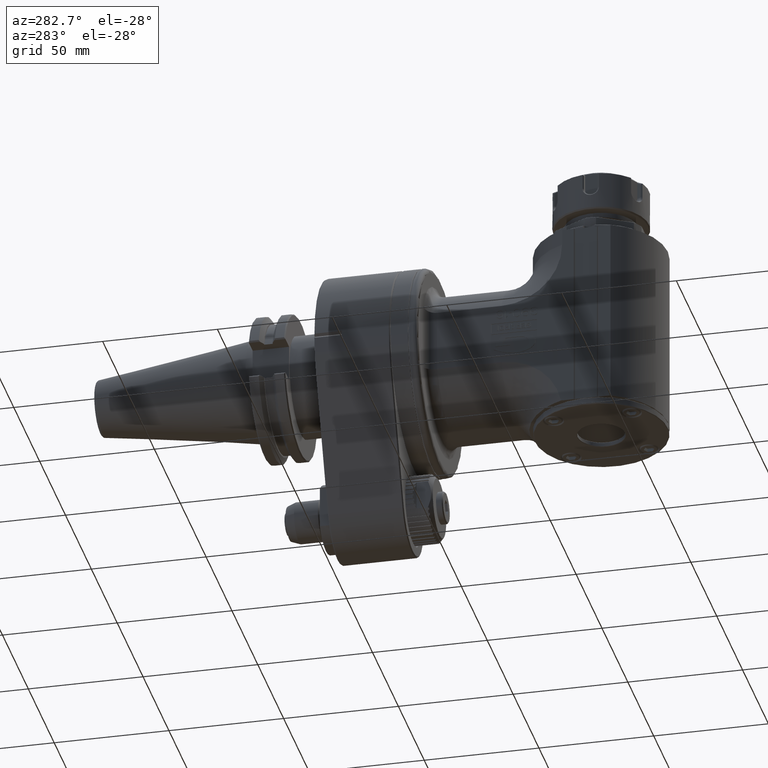
[diagram: clean part render]
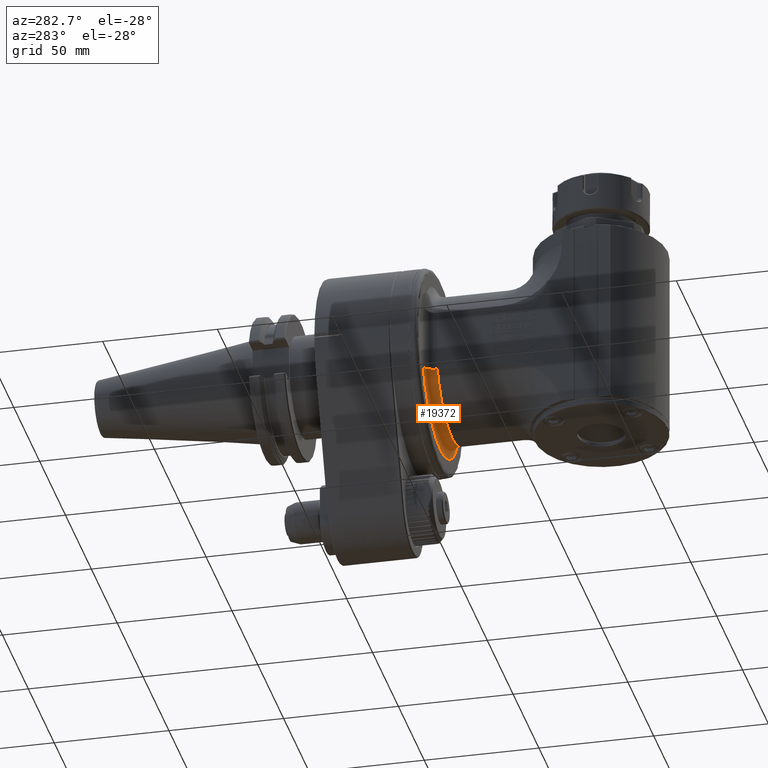
[diagram: same view with one face highlighted and labeled with its STEP entity id]
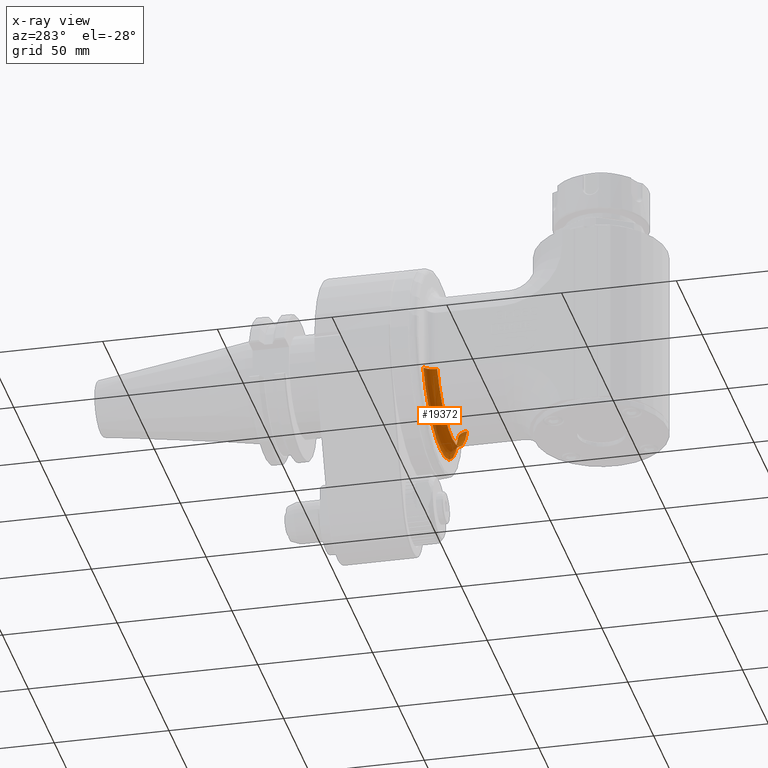
[diagram: x-ray of the same camera — body ghosted, the highlighted face saturated]
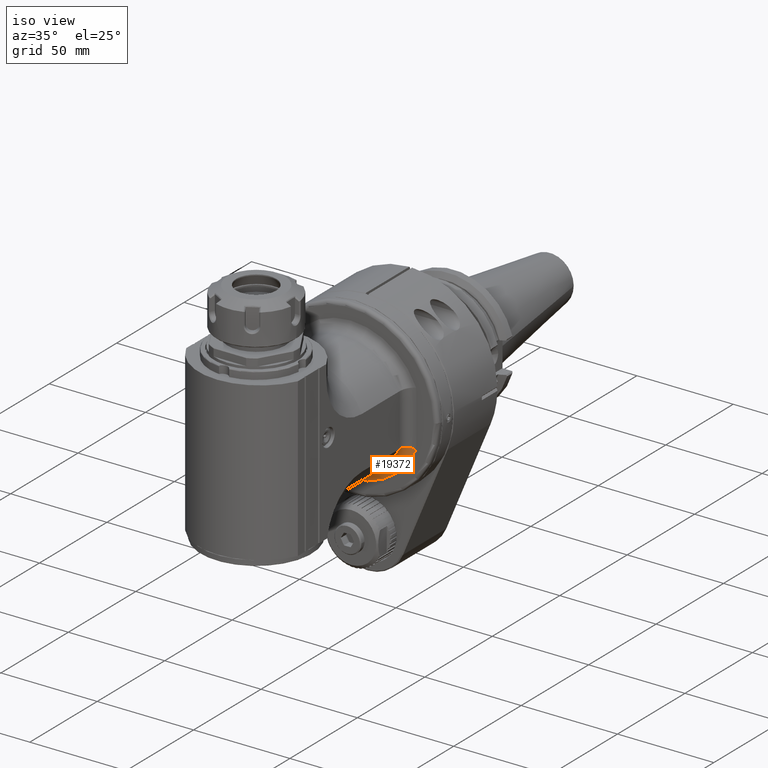
[diagram: same view with one face highlighted and labeled with its STEP entity id]
A machine part, auxiliary view. The second image highlights one B-rep face of the part: STEP entity #19372.
The next image is the same camera in x-ray: the body ghosted, the highlighted face saturated — about 2% of this face is hidden behind the body in this view.
A second angle (iso view) of the same face is appended — the face is thin or edge-on in the first view.
In plain terms, the highlighted toroidal blend (fillet) surface has major radius 37 mm and minor (blend) radius 5 mm.
Its self-contained STEP definition (entity closure, byte-faithful):
#125=TOROIDAL_SURFACE('',#20939,37.,5.);
#184=B_SPLINE_CURVE_WITH_KNOTS('',3,(#31478,#31479,#31480,#31481,#31482,
#31483,#31484,#31485,#31486,#31487,#31488,#31489,#31490,#31491,#31492,#31493,
#31494,#31495,#31496,#31497,#31498,#31499,#31500,#31501,#31502,#31503,#31504,
#31505,#31506,#31507,#31508,#31509,#31510,#31511,#31512,#31513,#31514,#31515,
#31516,#31517,#31518,#31519,#31520,#31521,#31522,#31523,#31524,#31525,#31526,
#31527,#31528,#31529,#31530,#31531,#31532,#31533,#31534,#31535,#31536,#31537,
#31538,#31539,#31540,#31541,#31542,#31543,#31544,#31545,#31546,#31547,#31548,
#31549,#31550,#31551,#31552,#31553,#31554,#31555,#31556,#31557,#31558,#31559,
#31560,#31561,#31562,#31563,#31564,#31565,#31566,#31567,#31568,#31569,#31570,
#31571),.UNSPECIFIED.,.F.,.F.,(4,3,3,3,3,3,3,3,3,3,3,3,3,3,3,3,3,3,3,3,
3,3,3,3,3,3,3,3,3,3,3,4),(0.,0.03225806451613,0.06451612903226,0.09677419354839,
0.1290322580645,0.1612903225806,0.1935483870968,0.2258064516129,0.258064516129,
0.2903225806452,0.3225806451613,0.3548387096774,0.3870967741935,0.4193548387097,
0.4516129032258,0.4838709677419,0.5161290322581,0.5483870967742,0.5806451612903,
0.6129032258065,0.6451612903226,0.6774193548387,0.7096774193548,0.741935483871,
0.7741935483871,0.8064516129032,0.8387096774194,0.8709677419355,0.9032258064516,
0.9354838709677,0.9677419354839,1.),.UNSPECIFIED.);
#185=B_SPLINE_CURVE_WITH_KNOTS('',3,(#31572,#31573,#31574,#31575,#31576,
#31577,#31578,#31579,#31580,#31581,#31582,#31583,#31584,#31585,#31586,#31587,
#31588,#31589,#31590,#31591,#31592,#31593,#31594,#31595,#31596,#31597,#31598,
#31599,#31600,#31601,#31602,#31603,#31604,#31605),.UNSPECIFIED.,.F.,.F.,
(4,1,1,1,1,1,1,1,1,1,1,1,1,1,1,1,1,1,1,1,1,1,1,1,1,1,1,1,1,1,1,4),(0.,0.03225806451613,
0.06451612903226,0.09677419354839,0.1290322580645,0.1612903225806,0.1935483870968,
0.2258064516129,0.258064516129,0.2903225806452,0.3225806451613,0.3548387096774,
0.3870967741935,0.4193548387097,0.4516129032258,0.4838709677419,0.5161290322581,
0.5483870967742,0.5806451612903,0.6129032258065,0.6451612903226,0.6774193548387,
0.7096774193548,0.741935483871,0.7741935483871,0.8064516129032,0.8387096774194,
0.8709677419355,0.9032258064516,0.9354838709677,0.9677419354839,1.),
 .UNSPECIFIED.);
#1114=CIRCLE('',#20938,32.);
#1115=CIRCLE('',#20940,37.);
#1939=FACE_OUTER_BOUND('',#3067,.T.);
#3067=EDGE_LOOP('',(#15036,#15037,#15038,#15039));
#8408=VERTEX_POINT('',#30784);
#8417=VERTEX_POINT('',#30806);
#8599=VERTEX_POINT('',#31475);
#8600=VERTEX_POINT('',#31476);
#10933=EDGE_CURVE('',#8417,#8408,#1114,.T.);
#10934=EDGE_CURVE('',#8599,#8600,#1115,.T.);
#10935=EDGE_CURVE('',#8600,#8408,#184,.T.);
#10936=EDGE_CURVE('',#8417,#8599,#185,.T.);
#15036=ORIENTED_EDGE('',*,*,#10934,.T.);
#15037=ORIENTED_EDGE('',*,*,#10935,.T.);
#15038=ORIENTED_EDGE('',*,*,#10933,.F.);
#15039=ORIENTED_EDGE('',*,*,#10936,.T.);
#19372=ADVANCED_FACE('',(#1939),#125,.F.);
#20938=AXIS2_PLACEMENT_3D('',#31473,#24402,#24403);
#20939=AXIS2_PLACEMENT_3D('',#31474,#24404,#24405);
#20940=AXIS2_PLACEMENT_3D('',#31477,#24406,#24407);
#24402=DIRECTION('center_axis',(0.,-1.,0.));
#24403=DIRECTION('ref_axis',(-0.906249999999979,0.,-0.42274216432719));
#24404=DIRECTION('center_axis',(0.,-1.,0.));
#24405=DIRECTION('ref_axis',(-0.999996080002561,0.,0.00279999634133489));
#24406=DIRECTION('center_axis',(0.,-1.,0.));
#24407=DIRECTION('ref_axis',(-0.918922228032974,0.,-0.394438764356289));
#30784=CARTESIAN_POINT('',(29.,65.,-13.52774925847));
#30806=CARTESIAN_POINT('',(-29.,65.,-13.52774925847));
#31473=CARTESIAN_POINT('Origin',(0.,65.,0.));
#31474=CARTESIAN_POINT('Origin',(0.,65.,0.));
#31475=CARTESIAN_POINT('',(-34.0001527593773,70.,-14.5939850757605));
#31476=CARTESIAN_POINT('',(34.0000025281699,69.9999999999999,-14.5945095635238));
#31477=CARTESIAN_POINT('Origin',(0.,70.,0.));
#31478=CARTESIAN_POINT('Ctrl Pts',(34.00000184902,69.9999999999997,-14.59450836898));
#31479=CARTESIAN_POINT('Ctrl Pts',(33.91448651279,70.0000000316236,-14.57693014305));
#31480=CARTESIAN_POINT('Ctrl Pts',(33.8289711321538,69.9978061372621,-14.559328543785));
#31481=CARTESIAN_POINT('Ctrl Pts',(33.7435439137025,69.9934186962242,-14.5417077223508));
#31482=CARTESIAN_POINT('Ctrl Pts',(33.6581166952513,69.9890312551862,-14.5240869009167));
#31483=CARTESIAN_POINT('Ctrl Pts',(33.572777659712,69.9824486636693,-14.5064468573133));
#31484=CARTESIAN_POINT('Ctrl Pts',(33.4877080537615,69.9736864559217,-14.4888318481017));
#31485=CARTESIAN_POINT('Ctrl Pts',(33.402638447811,69.9649242481741,-14.47121683889));
#31486=CARTESIAN_POINT('Ctrl Pts',(33.317838005063,69.9539852465808,-14.45362686407));
#31487=CARTESIAN_POINT('Ctrl Pts',(33.2333227602468,69.9408709768668,-14.4360637488683));
#31488=CARTESIAN_POINT('Ctrl Pts',(33.1488075154307,69.9277567071528,-14.4185006336667));
#31489=CARTESIAN_POINT('Ctrl Pts',(33.0645779779985,69.9124641452557,-14.4009643780833));
#31490=CARTESIAN_POINT('Ctrl Pts',(32.9808267318454,69.8950266444095,-14.383496111555));
#31491=CARTESIAN_POINT('Ctrl Pts',(32.8970754856924,69.8775891435634,-14.3660278450267));
#31492=CARTESIAN_POINT('Ctrl Pts',(32.813802217005,69.8580077509365,-14.3486275675534));
#31493=CARTESIAN_POINT('Ctrl Pts',(32.7311337635941,69.8363186902963,-14.3313224296167));
#31494=CARTESIAN_POINT('Ctrl Pts',(32.648465310183,69.8146296296561,-14.31401729168));
#31495=CARTESIAN_POINT('Ctrl Pts',(32.5664013374221,69.7908345406208,-14.29680729328));
#31496=CARTESIAN_POINT('Ctrl Pts',(32.4849739097674,69.7649444850821,-14.2797003980666));
#31497=CARTESIAN_POINT('Ctrl Pts',(32.403546482113,69.7390544295435,-14.2625935028533));
#31498=CARTESIAN_POINT('Ctrl Pts',(32.3227565973266,69.7110661228604,-14.2455897108267));
#31499=CARTESIAN_POINT('Ctrl Pts',(32.2428244334162,69.6810612074829,-14.2287366480833));
#31500=CARTESIAN_POINT('Ctrl Pts',(32.1628922695058,69.6510562921053,-14.21188358534));
#31501=CARTESIAN_POINT('Ctrl Pts',(32.0838164770415,69.619038298157,-14.19518125188));
#31502=CARTESIAN_POINT('Ctrl Pts',(32.0056067916808,69.5850186183494,-14.1786332469017));
#31503=CARTESIAN_POINT('Ctrl Pts',(31.9273971063198,69.5509989385416,-14.1620852419234));
#31504=CARTESIAN_POINT('Ctrl Pts',(31.8500545676113,69.5149753909457,-14.1456915654267));
#31505=CARTESIAN_POINT('Ctrl Pts',(31.7737183996672,69.4770157734834,-14.1294837272283));
#31506=CARTESIAN_POINT('Ctrl Pts',(31.6973822317232,69.4390561560213,-14.11327588903));
#31507=CARTESIAN_POINT('Ctrl Pts',(31.6220524300453,69.3991602408013,-14.09725388913));
#31508=CARTESIAN_POINT('Ctrl Pts',(31.5478715132118,69.3574150461348,-14.0814498216333));
#31509=CARTESIAN_POINT('Ctrl Pts',(31.4736905963782,69.3156698514682,-14.0656457541367));
#31510=CARTESIAN_POINT('Ctrl Pts',(31.400657279472,69.272077813483,-14.0500596190433));
#31511=CARTESIAN_POINT('Ctrl Pts',(31.328772352003,69.226646762219,-14.034693944365));
#31512=CARTESIAN_POINT('Ctrl Pts',(31.256887424534,69.1812157109549,-14.0193282696867));
#31513=CARTESIAN_POINT('Ctrl Pts',(31.1861529179031,69.1339424130855,-14.0041830554234));
#31514=CARTESIAN_POINT('Ctrl Pts',(31.1167553407175,69.0849602488542,-13.9893006274184));
#31515=CARTESIAN_POINT('Ctrl Pts',(31.0473577635317,69.0359780846228,-13.9744181994133));
#31516=CARTESIAN_POINT('Ctrl Pts',(30.9792952322461,68.9852896252393,-13.9597985576667));
#31517=CARTESIAN_POINT('Ctrl Pts',(30.9125943837171,68.9329284967495,-13.9454496629666));
#31518=CARTESIAN_POINT('Ctrl Pts',(30.8458935351882,68.8805673682599,-13.9311007682666));
#31519=CARTESIAN_POINT('Ctrl Pts',(30.7805551342762,68.8265327530591,-13.9170226206133));
#31520=CARTESIAN_POINT('Ctrl Pts',(30.7166580467251,68.7708971900418,-13.9032351731633));
#31521=CARTESIAN_POINT('Ctrl Pts',(30.652760959174,68.7152616270244,-13.8894477257133));
#31522=CARTESIAN_POINT('Ctrl Pts',(30.590306096401,68.6580239278674,-13.8759509784667));
#31523=CARTESIAN_POINT('Ctrl Pts',(30.5294292951273,68.5993247953581,-13.8627766255817));
#31524=CARTESIAN_POINT('Ctrl Pts',(30.4685524938534,68.5406256628486,-13.8496022726967));
#31525=CARTESIAN_POINT('Ctrl Pts',(30.409251369361,68.480467630549,-13.8367503141733));
#31526=CARTESIAN_POINT('Ctrl Pts',(30.3515116420516,68.4188496167446,-13.8242204066733));
#31527=CARTESIAN_POINT('Ctrl Pts',(30.2937719147423,68.3572316029404,-13.8116904991733));
#31528=CARTESIAN_POINT('Ctrl Pts',(30.2375962182629,68.2941511815632,-13.7994826426967));
#31529=CARTESIAN_POINT('Ctrl Pts',(30.1831127840617,68.2297634558597,-13.7876276677433));
#31530=CARTESIAN_POINT('Ctrl Pts',(30.1286293498605,68.1653757301562,-13.77577269279));
#31531=CARTESIAN_POINT('Ctrl Pts',(30.0758366480192,68.0996818827881,-13.76427059936));
#31532=CARTESIAN_POINT('Ctrl Pts',(30.0247788922037,68.032757350025,-13.753133219495));
#31533=CARTESIAN_POINT('Ctrl Pts',(29.9737211363881,67.9658328172617,-13.74199583963));
#31534=CARTESIAN_POINT('Ctrl Pts',(29.924397873533,67.897678067275,-13.73122317333));
#31535=CARTESIAN_POINT('Ctrl Pts',(29.876831772816,67.8283358659007,-13.72082324924));
#31536=CARTESIAN_POINT('Ctrl Pts',(29.8292656720991,67.7589936645266,-13.71042332515));
#31537=CARTESIAN_POINT('Ctrl Pts',(29.7834590334758,67.6884623565519,-13.70039614327));
#31538=CARTESIAN_POINT('Ctrl Pts',(29.7395209108142,67.6169291030921,-13.690767891715));
#31539=CARTESIAN_POINT('Ctrl Pts',(29.6955827881526,67.5453958496324,-13.68113964016));
#31540=CARTESIAN_POINT('Ctrl Pts',(29.6535099391873,67.4728626413289,-13.67191031893));
#31541=CARTESIAN_POINT('Ctrl Pts',(29.613288509422,67.3993253840258,-13.6630791206267));
#31542=CARTESIAN_POINT('Ctrl Pts',(29.5730670796566,67.3257881267227,-13.6542479223233));
#31543=CARTESIAN_POINT('Ctrl Pts',(29.5346996064665,67.2512455094511,-13.6458148469467));
#31544=CARTESIAN_POINT('Ctrl Pts',(29.4982545515188,67.1758418869667,-13.637797744105));
#31545=CARTESIAN_POINT('Ctrl Pts',(29.461809496571,67.1004382644821,-13.6297806412633));
#31546=CARTESIAN_POINT('Ctrl Pts',(29.4272863991123,67.0241737473326,-13.6221795109567));
#31547=CARTESIAN_POINT('Ctrl Pts',(29.3947294880365,66.9471732104872,-13.61500557944));
#31548=CARTESIAN_POINT('Ctrl Pts',(29.3621725769607,66.870172673642,-13.6078316479233));
#31549=CARTESIAN_POINT('Ctrl Pts',(29.3315798661022,66.7924370471077,-13.6010849151967));
#31550=CARTESIAN_POINT('Ctrl Pts',(29.3029466022665,66.7139688966957,-13.59476662593));
#31551=CARTESIAN_POINT('Ctrl Pts',(29.2743133384308,66.6355007462836,-13.5884483366633));
#31552=CARTESIAN_POINT('Ctrl Pts',(29.2476429350179,66.5562987987471,-13.5825584908567));
#31553=CARTESIAN_POINT('Ctrl Pts',(29.2229994367781,66.4765722532193,-13.5771129707534));
#31554=CARTESIAN_POINT('Ctrl Pts',(29.1983559385382,66.3968457076913,-13.57166745065));
#31555=CARTESIAN_POINT('Ctrl Pts',(29.1757360500314,66.3165955395865,-13.56666625625));
#31556=CARTESIAN_POINT('Ctrl Pts',(29.1551357739242,66.2358360048529,-13.562109520405));
#31557=CARTESIAN_POINT('Ctrl Pts',(29.1345354978171,66.1550764701195,-13.55755278456));
#31558=CARTESIAN_POINT('Ctrl Pts',(29.1159564210722,66.073807256127,-13.55344050727));
#31559=CARTESIAN_POINT('Ctrl Pts',(29.0994217140181,65.992135304766,-13.5497797134867));
#31560=CARTESIAN_POINT('Ctrl Pts',(29.0828870069641,65.910463353405,-13.5461189197033));
#31561=CARTESIAN_POINT('Ctrl Pts',(29.0683976238941,65.8283883748364,-13.5429096094267));
#31562=CARTESIAN_POINT('Ctrl Pts',(29.0559765621658,65.746077908898,-13.5401572876));
#31563=CARTESIAN_POINT('Ctrl Pts',(29.0435555004374,65.6637674429596,-13.5374049657733));
#31564=CARTESIAN_POINT('Ctrl Pts',(29.0331996525751,65.5812220107757,-13.5351096323967));
#31565=CARTESIAN_POINT('Ctrl Pts',(29.0249044332364,65.4984216102553,-13.533271097535));
#31566=CARTESIAN_POINT('Ctrl Pts',(29.0166092138977,65.4156212097346,-13.5314325626733));
#31567=CARTESIAN_POINT('Ctrl Pts',(29.0103782162922,65.3325654995491,-13.5300508263267));
#31568=CARTESIAN_POINT('Ctrl Pts',(29.0062264274005,65.2494504071097,-13.5291300002758));
#31569=CARTESIAN_POINT('Ctrl Pts',(29.0020746385089,65.1663353146705,-13.528209174225));
#31570=CARTESIAN_POINT('Ctrl Pts',(29.,65.0831608713,-13.52774925847));
#31571=CARTESIAN_POINT('Ctrl Pts',(29.,65.,-13.52774925847));
#31572=CARTESIAN_POINT('Ctrl Pts',(-29.,65.,-13.52774925847));
#31573=CARTESIAN_POINT('Ctrl Pts',(-29.,65.08316268487,-13.52774925847));
#31574=CARTESIAN_POINT('Ctrl Pts',(-29.00414771151,65.2495154256,-13.52866912887));
#31575=CARTESIAN_POINT('Ctrl Pts',(-29.0228432931,65.49868883747,-13.5328145441));
#31576=CARTESIAN_POINT('Ctrl Pts',(-29.05391294571,65.74633105469,-13.53970088272));
#31577=CARTESIAN_POINT('Ctrl Pts',(-29.09738036444,65.99256086942,-13.54932921057));
#31578=CARTESIAN_POINT('Ctrl Pts',(-29.15312398996,66.2363761385,-13.56166677951));
#31579=CARTESIAN_POINT('Ctrl Pts',(-29.22098400182,66.47712969335,-13.57667089904));
#31580=CARTESIAN_POINT('Ctrl Pts',(-29.30099882798,66.71473984882,-13.5943411936));
#31581=CARTESIAN_POINT('Ctrl Pts',(-29.39278339915,66.94795201851,-13.61458241995));
#31582=CARTESIAN_POINT('Ctrl Pts',(-29.4963532716,67.17674858451,-13.63738656973));
#31583=CARTESIAN_POINT('Ctrl Pts',(-29.61146377254,67.40038002877,-13.66268701144));
#31584=CARTESIAN_POINT('Ctrl Pts',(-29.73768644172,67.61798298076,-13.69037606216));
#31585=CARTESIAN_POINT('Ctrl Pts',(-29.87511039321,67.82957926467,-13.72045870311));
#31586=CARTESIAN_POINT('Ctrl Pts',(-30.0230887483,68.03404479927,-13.75277806231));
#31587=CARTESIAN_POINT('Ctrl Pts',(-30.18147052252,68.2311297811,-13.78728563645));
#31588=CARTESIAN_POINT('Ctrl Pts',(-30.35000511117,68.42037044951,-13.82391051001));
#31589=CARTESIAN_POINT('Ctrl Pts',(-30.52791572852,68.60084558403,-13.86246786205));
#31590=CARTESIAN_POINT('Ctrl Pts',(-30.7152863109,68.77256100354,-13.90295971937));
#31591=CARTESIAN_POINT('Ctrl Pts',(-30.911308668,68.93466041555,-13.94519521922));
#31592=CARTESIAN_POINT('Ctrl Pts',(-31.11550420754,69.08672854136,-13.98905609932));
#31593=CARTESIAN_POINT('Ctrl Pts',(-31.32771439082,69.22854535095,-14.03449305503));
#31594=CARTESIAN_POINT('Ctrl Pts',(-31.54682191308,69.35931794755,-14.08125282097));
#31595=CARTESIAN_POINT('Ctrl Pts',(-31.77282148522,69.47900765207,-14.12932123595));
#31596=CARTESIAN_POINT('Ctrl Pts',(-32.00485456513,69.58707030514,-14.17850303688));
#31597=CARTESIAN_POINT('Ctrl Pts',(-32.24208808462,69.68312169372,-14.22861147437));
#31598=CARTESIAN_POINT('Ctrl Pts',(-32.48446275032,69.76708157389,-14.27962340327));
#31599=CARTESIAN_POINT('Ctrl Pts',(-32.73066394048,69.83846041659,-14.33125687724));
#31600=CARTESIAN_POINT('Ctrl Pts',(-32.98051215265,69.89720614651,-14.38345700936));
#31601=CARTESIAN_POINT('Ctrl Pts',(-33.23320112836,69.94307332791,-14.43609058404));
#31602=CARTESIAN_POINT('Ctrl Pts',(-33.48759764002,69.97587810363,-14.48876633539));
#31603=CARTESIAN_POINT('Ctrl Pts',(-33.74347976149,69.9956177641,-14.54200559634));
#31604=CARTESIAN_POINT('Ctrl Pts',(-33.91468927863,70.,-14.57638220598));
#31605=CARTESIAN_POINT('Ctrl Pts',(-34.00009659436,70.,-14.59393736077));